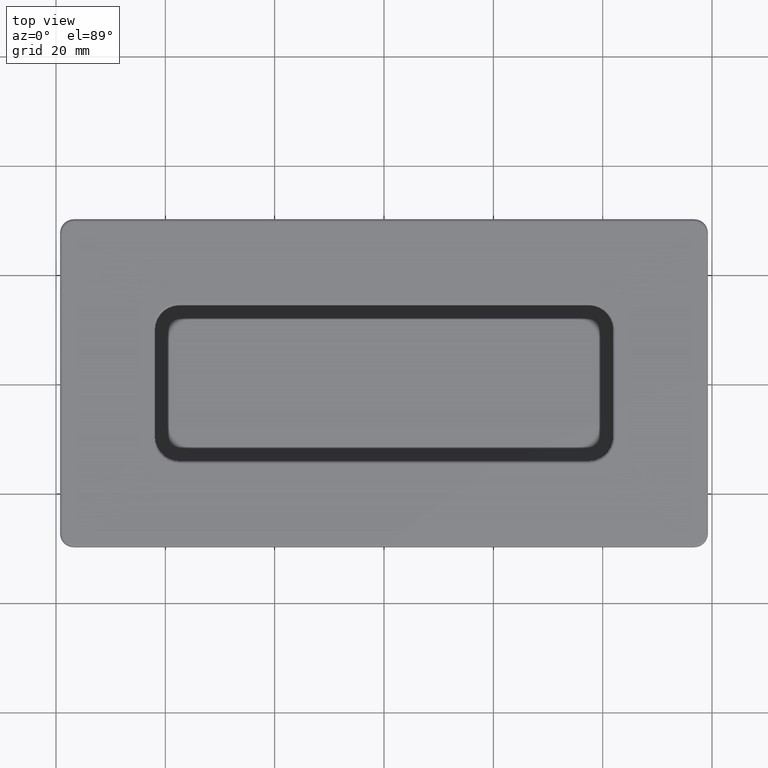
[diagram: clean part render]
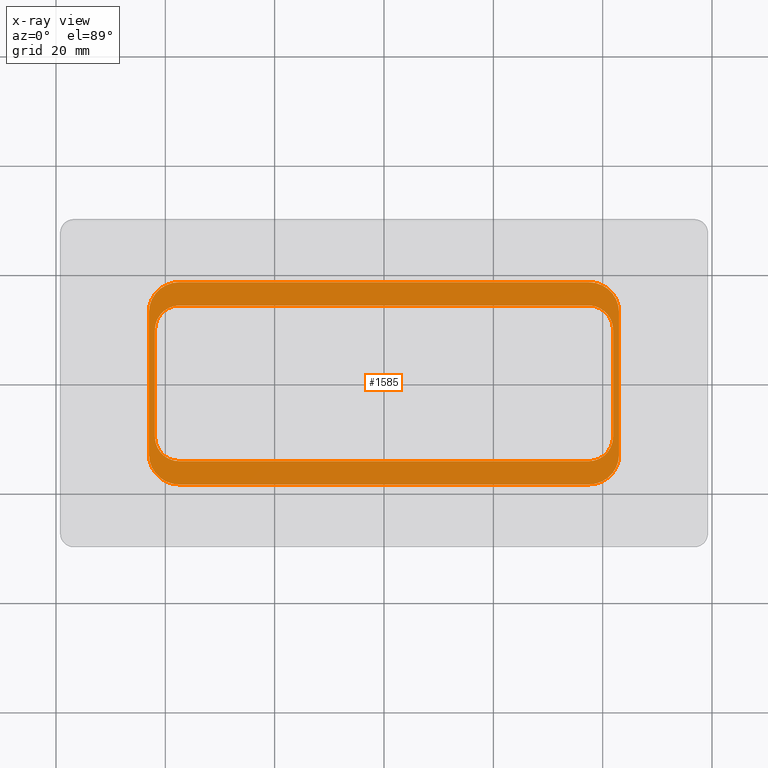
[diagram: x-ray — body ghosted, one internal face saturated and labeled with its STEP entity id]
A machine part, top view, then the same camera in x-ray: the body is ghosted and one INTERNAL B-rep face — a face not visible from any outside direction — is saturated and labeled: STEP entity #1585.
In plain terms, the highlighted planar face has unit normal (0, 0, 1).
Its self-contained STEP definition (entity closure, byte-faithful):
#121=LINE('',#2619,#225);
#125=LINE('',#2628,#229);
#152=LINE('',#2774,#256);
#156=LINE('',#2783,#260);
#160=LINE('',#2795,#264);
#163=LINE('',#2802,#267);
#167=LINE('',#2815,#271);
#169=LINE('',#2821,#273);
#225=VECTOR('',#2105,74.8);
#229=VECTOR('',#2115,19.5);
#256=VECTOR('',#2298,26.);
#260=VECTOR('',#2308,75.);
#264=VECTOR('',#2322,75.);
#267=VECTOR('',#2331,26.);
#271=VECTOR('',#2349,74.8);
#273=VECTOR('',#2357,19.5);
#301=PLANE('',#1809);
#313=FACE_BOUND('',#529,.T.);
#415=FACE_OUTER_BOUND('',#528,.T.);
#528=EDGE_LOOP('',(#1442,#1443,#1444,#1445,#1446,#1447,#1448,#1449));
#529=EDGE_LOOP('',(#1450,#1451,#1452,#1453,#1454,#1455,#1456,#1457));
#598=CIRCLE('',#1708,4.5);
#599=CIRCLE('',#1711,4.50000000000002);
#644=CIRCLE('',#1789,5.5);
#645=CIRCLE('',#1792,5.5);
#646=CIRCLE('',#1797,5.5);
#647=CIRCLE('',#1800,5.5);
#648=CIRCLE('',#1804,4.5);
#649=CIRCLE('',#1807,4.49999999999999);
#732=VERTEX_POINT('',#2616);
#733=VERTEX_POINT('',#2618);
#734=VERTEX_POINT('',#2622);
#735=VERTEX_POINT('',#2626);
#736=VERTEX_POINT('',#2630);
#775=VERTEX_POINT('',#2771);
#776=VERTEX_POINT('',#2773);
#777=VERTEX_POINT('',#2777);
#778=VERTEX_POINT('',#2781);
#779=VERTEX_POINT('',#2785);
#780=VERTEX_POINT('',#2792);
#781=VERTEX_POINT('',#2794);
#782=VERTEX_POINT('',#2800);
#783=VERTEX_POINT('',#2809);
#784=VERTEX_POINT('',#2811);
#785=VERTEX_POINT('',#2817);
#909=EDGE_CURVE('',#733,#732,#121,.T.);
#912=EDGE_CURVE('',#732,#734,#598,.T.);
#914=EDGE_CURVE('',#734,#735,#125,.T.);
#916=EDGE_CURVE('',#735,#736,#599,.T.);
#986=EDGE_CURVE('',#776,#775,#152,.T.);
#989=EDGE_CURVE('',#775,#777,#644,.T.);
#991=EDGE_CURVE('',#777,#778,#156,.T.);
#993=EDGE_CURVE('',#778,#779,#645,.T.);
#996=EDGE_CURVE('',#781,#780,#160,.T.);
#998=EDGE_CURVE('',#780,#776,#646,.T.);
#1000=EDGE_CURVE('',#779,#782,#163,.T.);
#1001=EDGE_CURVE('',#782,#781,#647,.T.);
#1004=EDGE_CURVE('',#784,#783,#648,.T.);
#1006=EDGE_CURVE('',#736,#784,#167,.T.);
#1007=EDGE_CURVE('',#785,#733,#649,.T.);
#1009=EDGE_CURVE('',#783,#785,#169,.T.);
#1442=ORIENTED_EDGE('',*,*,#991,.T.);
#1443=ORIENTED_EDGE('',*,*,#993,.T.);
#1444=ORIENTED_EDGE('',*,*,#1000,.T.);
#1445=ORIENTED_EDGE('',*,*,#1001,.T.);
#1446=ORIENTED_EDGE('',*,*,#996,.T.);
#1447=ORIENTED_EDGE('',*,*,#998,.T.);
#1448=ORIENTED_EDGE('',*,*,#986,.T.);
#1449=ORIENTED_EDGE('',*,*,#989,.T.);
#1450=ORIENTED_EDGE('',*,*,#1009,.T.);
#1451=ORIENTED_EDGE('',*,*,#1007,.T.);
#1452=ORIENTED_EDGE('',*,*,#909,.T.);
#1453=ORIENTED_EDGE('',*,*,#912,.T.);
#1454=ORIENTED_EDGE('',*,*,#914,.T.);
#1455=ORIENTED_EDGE('',*,*,#916,.T.);
#1456=ORIENTED_EDGE('',*,*,#1006,.T.);
#1457=ORIENTED_EDGE('',*,*,#1004,.T.);
#1585=ADVANCED_FACE('',(#415,#313),#301,.F.);
#1708=AXIS2_PLACEMENT_3D('',#2624,#2110,#2111);
#1711=AXIS2_PLACEMENT_3D('',#2632,#2119,#2120);
#1789=AXIS2_PLACEMENT_3D('',#2779,#2303,#2304);
#1792=AXIS2_PLACEMENT_3D('',#2787,#2312,#2313);
#1797=AXIS2_PLACEMENT_3D('',#2798,#2326,#2327);
#1800=AXIS2_PLACEMENT_3D('',#2804,#2334,#2335);
#1804=AXIS2_PLACEMENT_3D('',#2812,#2344,#2345);
#1807=AXIS2_PLACEMENT_3D('',#2818,#2352,#2353);
#1809=AXIS2_PLACEMENT_3D('',#2822,#2358,#2359);
#2105=DIRECTION('',(1.,0.,0.));
#2110=DIRECTION('center_axis',(0.,0.,1.));
#2111=DIRECTION('ref_axis',(0.,1.,0.));
#2115=DIRECTION('',(0.,1.,0.));
#2119=DIRECTION('center_axis',(0.,0.,1.));
#2120=DIRECTION('ref_axis',(-1.,-4.93432455388958E-16,0.));
#2298=DIRECTION('',(0.,1.,0.));
#2303=DIRECTION('center_axis',(0.,0.,-1.));
#2304=DIRECTION('ref_axis',(1.,-2.8260222445004E-15,0.));
#2308=DIRECTION('',(1.,0.,0.));
#2312=DIRECTION('center_axis',(0.,0.,-1.));
#2313=DIRECTION('ref_axis',(-8.07434927000112E-16,-1.,0.));
#2322=DIRECTION('',(-1.,0.,0.));
#2326=DIRECTION('center_axis',(0.,0.,-1.));
#2327=DIRECTION('ref_axis',(8.07434927000112E-16,1.,0.));
#2331=DIRECTION('',(0.,-1.,0.));
#2334=DIRECTION('center_axis',(0.,0.,-1.));
#2335=DIRECTION('ref_axis',(-1.,2.8260222445004E-15,0.));
#2344=DIRECTION('center_axis',(0.,0.,1.));
#2345=DIRECTION('ref_axis',(0.,-1.,0.));
#2349=DIRECTION('',(-1.,0.,0.));
#2352=DIRECTION('center_axis',(0.,0.,1.));
#2353=DIRECTION('ref_axis',(1.,4.93432455388958E-16,0.));
#2357=DIRECTION('',(0.,-1.,0.));
#2358=DIRECTION('center_axis',(0.,0.,1.));
#2359=DIRECTION('ref_axis',(1.,0.,0.));
#2616=CARTESIAN_POINT('',(37.4,-14.25,-1.8));
#2618=CARTESIAN_POINT('',(-37.4,-14.25,-1.8));
#2619=CARTESIAN_POINT('',(37.4,-14.25,-1.8));
#2622=CARTESIAN_POINT('',(41.9,-9.75,-1.8));
#2624=CARTESIAN_POINT('Origin',(37.4,-9.75,-1.8));
#2626=CARTESIAN_POINT('',(41.9,9.75,-1.8));
#2628=CARTESIAN_POINT('',(41.9,9.75,-1.8));
#2630=CARTESIAN_POINT('',(37.4,14.25,-1.8));
#2632=CARTESIAN_POINT('Origin',(37.4,9.75,-1.8));
#2771=CARTESIAN_POINT('',(-43.,13.,-1.8));
#2773=CARTESIAN_POINT('',(-43.,-13.,-1.8));
#2774=CARTESIAN_POINT('',(-43.,6.50000000000001,-1.8));
#2777=CARTESIAN_POINT('',(-37.5,18.5,-1.8));
#2779=CARTESIAN_POINT('Origin',(-37.5,13.,-1.8));
#2781=CARTESIAN_POINT('',(37.5,18.5,-1.8));
#2783=CARTESIAN_POINT('',(18.75,18.5,-1.8));
#2785=CARTESIAN_POINT('',(43.,13.,-1.8));
#2787=CARTESIAN_POINT('Origin',(37.5,13.,-1.8));
#2792=CARTESIAN_POINT('',(-37.5,-18.5,-1.8));
#2794=CARTESIAN_POINT('',(37.5,-18.5,-1.8));
#2795=CARTESIAN_POINT('',(-18.75,-18.5,-1.8));
#2798=CARTESIAN_POINT('Origin',(-37.5,-13.,-1.8));
#2800=CARTESIAN_POINT('',(43.,-13.,-1.8));
#2802=CARTESIAN_POINT('',(43.,-6.50000000000001,-1.8));
#2804=CARTESIAN_POINT('Origin',(37.5,-13.,-1.8));
#2809=CARTESIAN_POINT('',(-41.9,9.75,-1.8));
#2811=CARTESIAN_POINT('',(-37.4,14.25,-1.8));
#2812=CARTESIAN_POINT('Origin',(-37.4,9.75,-1.8));
#2815=CARTESIAN_POINT('',(-37.4,14.25,-1.8));
#2817=CARTESIAN_POINT('',(-41.9,-9.75,-1.8));
#2818=CARTESIAN_POINT('Origin',(-37.4,-9.75,-1.8));
#2821=CARTESIAN_POINT('',(-41.9,-9.75,-1.8));
#2822=CARTESIAN_POINT('Origin',(0.,0.,-1.8));